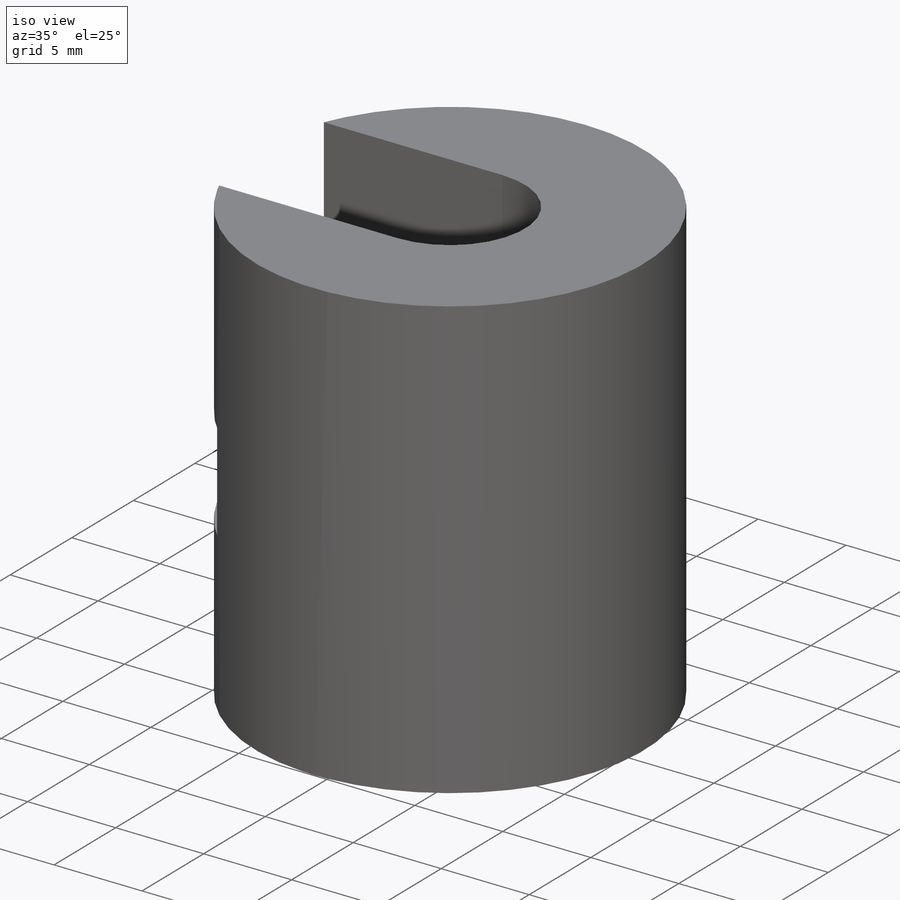
[diagram: iso view]
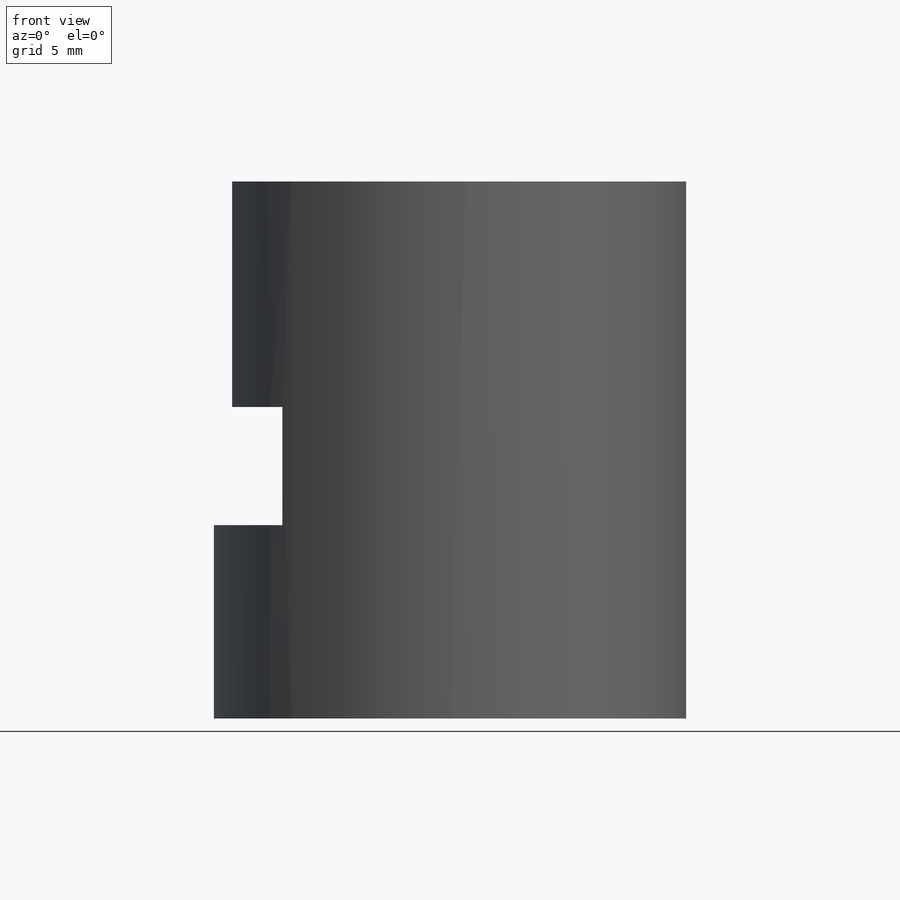
[diagram: front view]
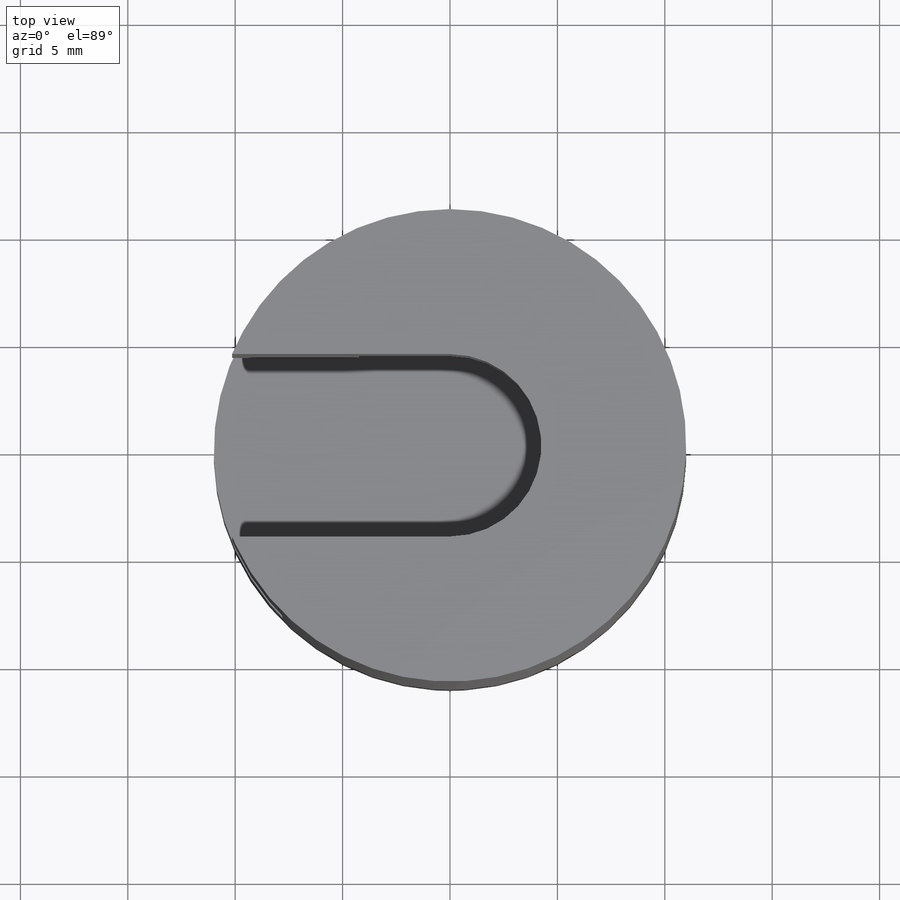
[diagram: top view]
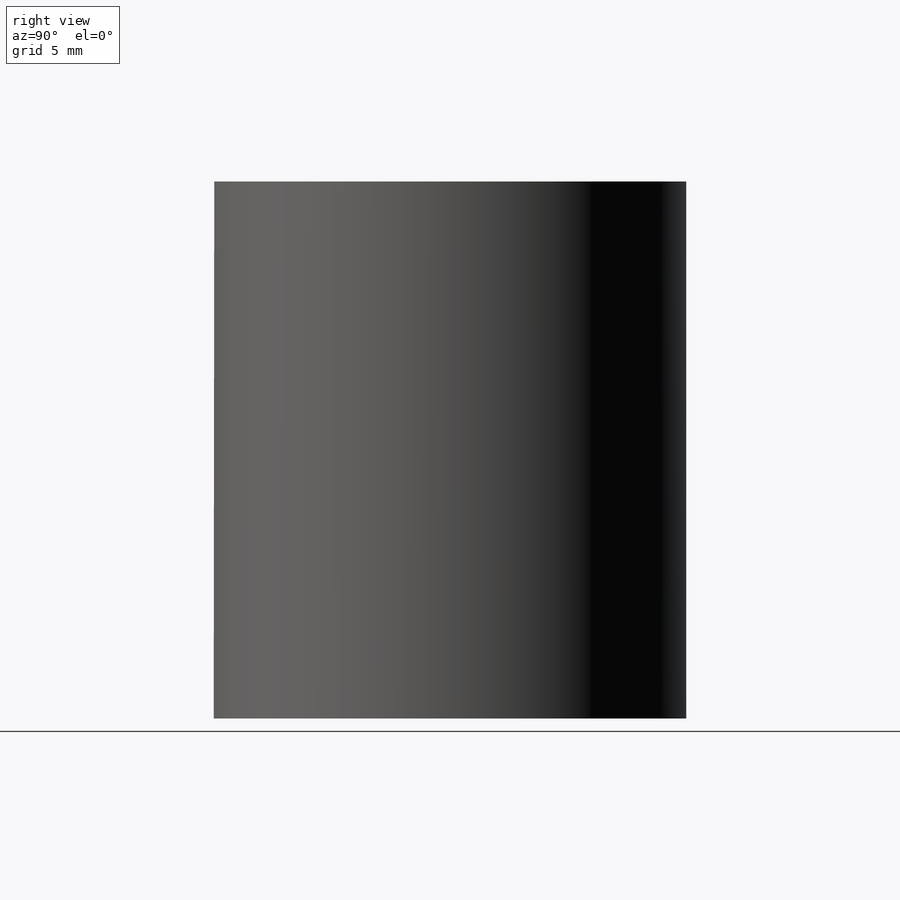
[diagram: right view]
SOLIDWORKS PART (.sldprt)
format: sldprt  version: not decoded by parser v0  size: 157,184 bytes
history: native  units: mm
features: sketch x5, cut_extrude x4, plane x3, material x1, extrude x1 (+9 scaffold rows collapsed)
feature tree (23):
  scaffold x9  (default folders/planes/origin — collapsed)
  material  "Material <sin especificar>"
  plane  "Alzado"
  plane  "Planta"
  plane  "Vista lateral"
  sketch  "Croquis1"  dims[D1=8.5mm D2=22.0mm]
  extrude  "Saliente-Extruir1"  Depth=25mm
  sketch  "Croquis2"  dims[D1=4.25mm]
  cut_extrude  "Cortar-Extruir1"  Depth=5mm
  sketch  "Croquis3"  dims[D1=8.5mm]
  cut_extrude  "Cortar-Extruir2"  Depth=6mm
  sketch  "Croquis5"  dims[D1=8.5mm D2=15.5mm]
  cut_extrude  "Cortar-Extruir8"  Depth=10mm
  sketch  "Croquis9"  dims[D1=9.0mm D2=15.5mm D3=5.5mm D4=8.5mm D5=11.0mm]
  cut_extrude  "Cortar-Extruir16"  [1 undecoded]
decode coverage: 9 of 10 modeling features carry decoded parameters
note: 1 parameter value undecoded
note: suppression state not decoded; provenance and decode notes live in map.json
